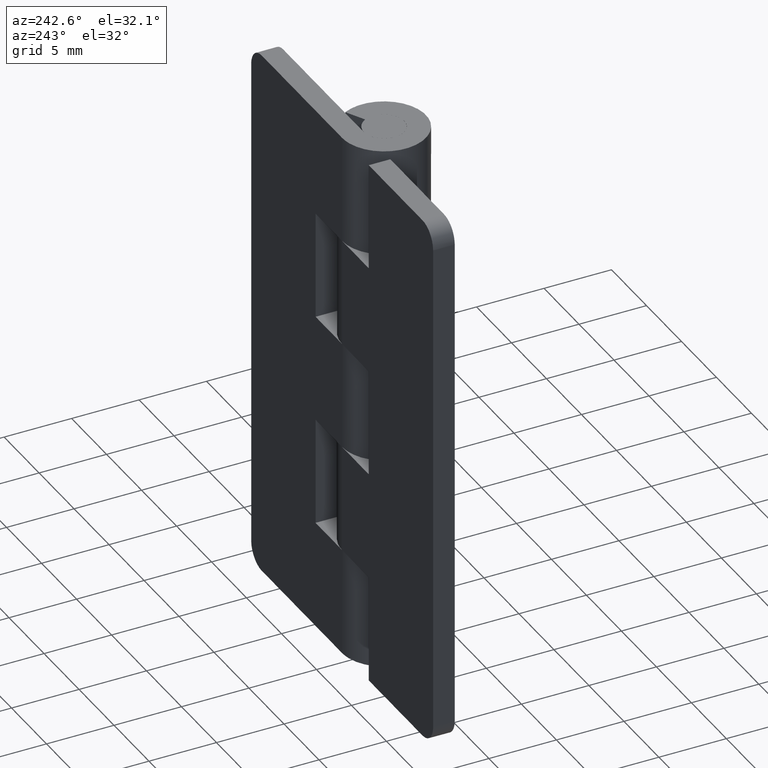
[diagram: clean part render]
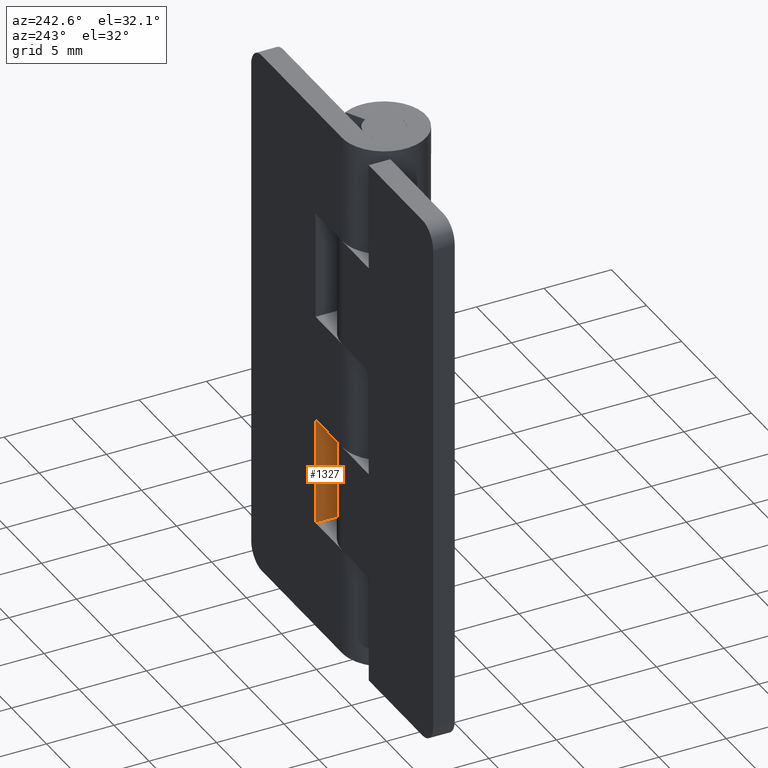
[diagram: same view with one face highlighted and labeled with its STEP entity id]
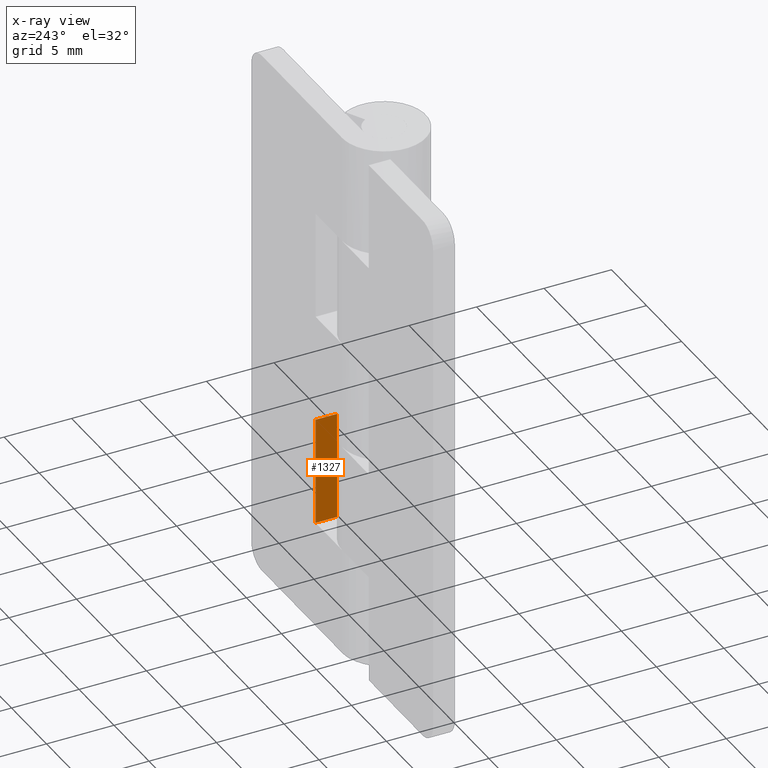
[diagram: x-ray of the same camera — body ghosted, the highlighted face saturated]
A machine part, auxiliary view. The second image highlights one B-rep face of the part: STEP entity #1327.
The next image is the same camera in x-ray: the body ghosted, the highlighted face saturated — about 0% of this face is hidden behind the body in this view.
In plain terms, the highlighted face is a freeform B-spline surface patch.
Its self-contained STEP definition (entity closure, byte-faithful):
#1229=CARTESIAN_POINT('',(3.800004000000000,3.099998000000050,16.0));
#1230=VERTEX_POINT('',#1229);
#1236=CARTESIAN_POINT('',(3.800004000000000,1.499999999999946,16.0));
#1237=VERTEX_POINT('',#1236);
#1238=CARTESIAN_POINT('',(3.800004000000000,1.499999999999946,16.0));
#1239=CARTESIAN_POINT('',(3.800004000000000,3.099998000000050,16.0));
#1240=QUASI_UNIFORM_CURVE('',1,(#1238,#1239),.UNSPECIFIED.,.F.,.U.);
#1241=EDGE_CURVE('',#1237,#1230,#1240,.T.);
#1300=CARTESIAN_POINT('',(3.800004000000000,1.420080103001048,7.600400015505446));
#1301=CARTESIAN_POINT('',(3.800004000000000,1.420080103001048,16.399600199071170));
#1302=CARTESIAN_POINT('',(3.800004000000000,3.179917939914239,7.600400015505446));
#1303=CARTESIAN_POINT('',(3.800004000000000,3.179917939914239,16.399600199071170));
#1304=B_SPLINE_SURFACE_WITH_KNOTS('',1,1,((#1300,#1302),(#1301,#1303)),.UNSPECIFIED.,.F.,.F.,.U.,(2,2),(2,2),(0.0,8.799200183565727),(0.041708334948495,0.958291687403247),.UNSPECIFIED.);
#1305=ORIENTED_EDGE('',*,*,#1241,.T.);
#1306=CARTESIAN_POINT('',(3.800004000000000,3.099998000000050,7.999999999999900));
#1307=VERTEX_POINT('',#1306);
#1308=CARTESIAN_POINT('',(3.800004000000000,3.099998000000050,7.999999999999900));
#1309=CARTESIAN_POINT('',(3.800004000000000,3.099998000000050,16.0));
#1310=QUASI_UNIFORM_CURVE('',1,(#1308,#1309),.UNSPECIFIED.,.F.,.U.);
#1311=EDGE_CURVE('',#1307,#1230,#1310,.T.);
#1312=ORIENTED_EDGE('',*,*,#1311,.F.);
#1313=CARTESIAN_POINT('',(3.800004000000000,1.499999999999946,7.999999999999900));
#1314=VERTEX_POINT('',#1313);
#1315=CARTESIAN_POINT('',(3.800004000000000,1.499999999999946,7.999999999999900));
#1316=CARTESIAN_POINT('',(3.800004000000000,3.099998000000050,7.999999999999900));
#1317=QUASI_UNIFORM_CURVE('',1,(#1315,#1316),.UNSPECIFIED.,.F.,.U.);
#1318=EDGE_CURVE('',#1314,#1307,#1317,.T.);
#1319=ORIENTED_EDGE('',*,*,#1318,.F.);
#1320=CARTESIAN_POINT('',(3.800004000000000,1.499999999999946,16.0));
#1321=CARTESIAN_POINT('',(3.800004000000000,1.499999999999946,7.999999999999900));
#1322=QUASI_UNIFORM_CURVE('',1,(#1320,#1321),.UNSPECIFIED.,.F.,.U.);
#1323=EDGE_CURVE('',#1237,#1314,#1322,.T.);
#1324=ORIENTED_EDGE('',*,*,#1323,.F.);
#1325=EDGE_LOOP('',(#1305,#1312,#1319,#1324));
#1326=FACE_OUTER_BOUND('',#1325,.T.);
#1327=ADVANCED_FACE('',(#1326),#1304,.T.);